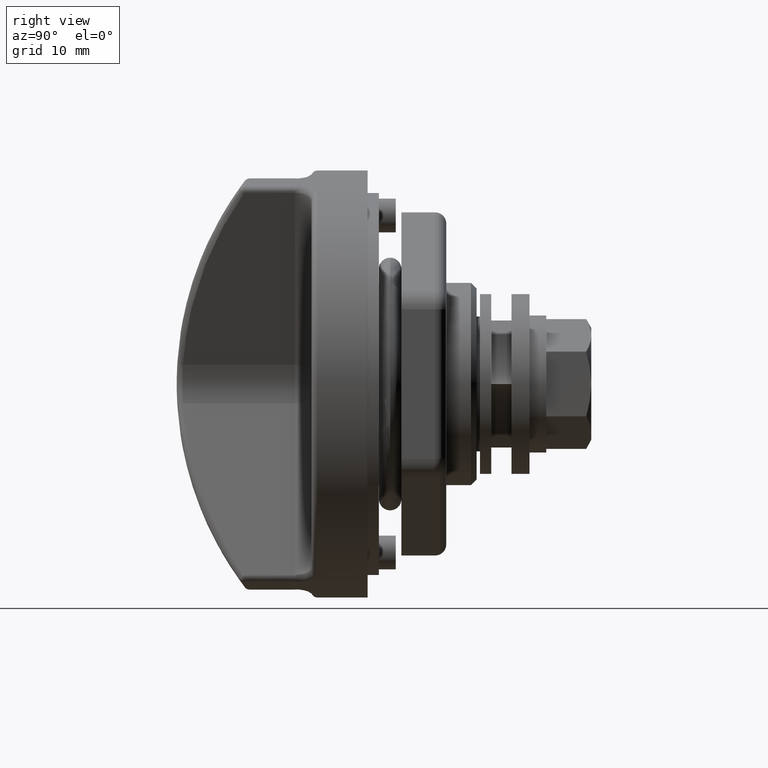
[diagram: clean part render]
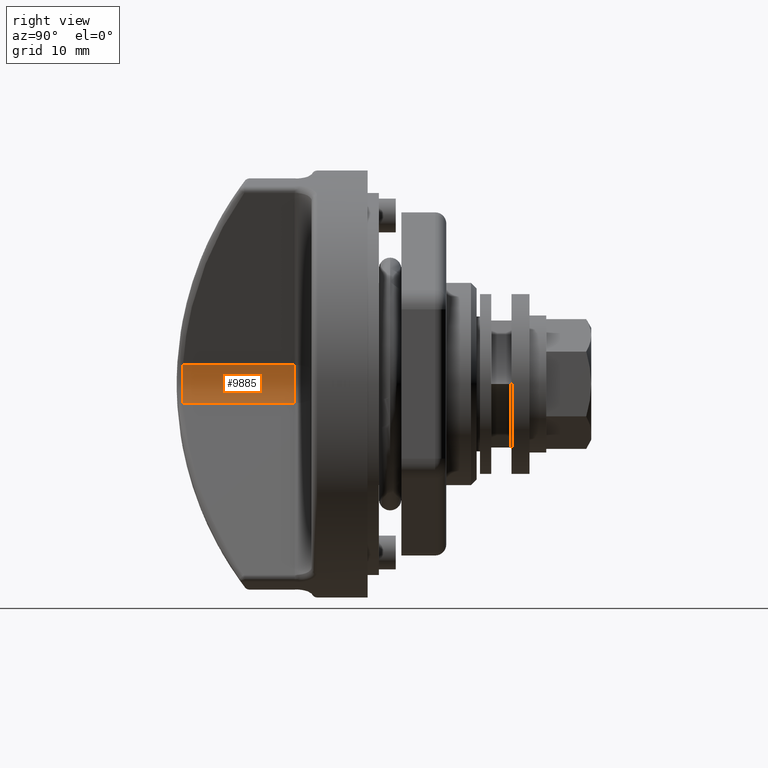
[diagram: same view with one face highlighted and labeled with its STEP entity id]
A machine part, right view. The second image highlights one B-rep face of the part: STEP entity #9885.
In plain terms, the highlighted cylindrical surface (partial cylindrical patch) has radius 4.9997 mm, axis along (0, -1, 0).
Its self-contained STEP definition (entity closure, byte-faithful):
#7505 = LINE ( 'NONE', #7513, #7773 ) ;
#7513 = CARTESIAN_POINT ( 'NONE',  ( 980.3188798485390400, -1.801000000000000200, -1.710100000000000000 ) ) ;
#7773 = VECTOR ( 'NONE', #7779, 1000.000000000000000 ) ;
#7779 = DIRECTION ( 'NONE',  ( -1.000000000000000000, 0.0000000000000000000, 0.0000000000000000000 ) ) ;
#8246 = CARTESIAN_POINT ( 'NONE',  ( 980.3188798485390400, -6.499103267433519600, -2.986390218861890200E-015 ) ) ;
#8247 = LINE ( 'NONE', #8310, #8309 ) ;
#8248 = FACE_OUTER_BOUND ( 'NONE', #9886, .T. ) ;
#8292 = DIRECTION ( 'NONE',  ( 0.0000000000000000000, 0.0000000000000000000, -1.000000000000000000 ) ) ;
#8293 = DIRECTION ( 'NONE',  ( 1.000000000000000000, 0.0000000000000000000, 0.0000000000000000000 ) ) ;
#8294 = AXIS2_PLACEMENT_3D ( 'NONE', #8304, #8293, #8292 ) ;
#8295 = CIRCLE ( 'NONE', #8294, 4.999661620696880200 ) ;
#8296 = CARTESIAN_POINT ( 'NONE',  ( -16.43996232374810200, -1.801000000000000200, -1.710100000000000000 ) ) ;
#8297 = CARTESIAN_POINT ( 'NONE',  ( -16.47874123563246600, -1.600174158435825300, -1.158377561290136800 ) ) ;
#8298 = CARTESIAN_POINT ( 'NONE',  ( -16.49993781658833600, -1.499744871936375300, -0.5892281926629223700 ) ) ;
#8299 = CARTESIAN_POINT ( 'NONE',  ( -16.50003088716631800, -1.499291031533510400, 0.2907462884728336200 ) ) ;
#8300 = CARTESIAN_POINT ( 'NONE',  ( -16.49471312503348100, -1.525040533111218200, 0.5825325574644466500 ) ) ;
#8301 = CARTESIAN_POINT ( 'NONE',  ( -16.47437479918967200, -1.625692923842482000, 1.153479903795378200 ) ) ;
#8302 = CARTESIAN_POINT ( 'NONE',  ( -16.45935232582717200, -1.700584250946902700, 1.434231009927536800 ) ) ;
#8303 = CARTESIAN_POINT ( 'NONE',  ( -16.43996232401690300, -1.801000000027980000, 1.710100000076820100 ) ) ;
#8304 = CARTESIAN_POINT ( 'NONE',  ( -6.500000000000000000, -6.499103267433519600, -2.986390218861890200E-015 ) ) ;
#8305 = B_SPLINE_CURVE_WITH_KNOTS ( 'NONE', 3,
 ( #8303, #8302, #8301, #8300, #8299, #8298, #8297, #8296 ),
 .UNSPECIFIED., .F., .F.,
 ( 4, 2, 2, 4 ),
 ( 0.0000000000000000000, 0.0008701309063310726800, 0.001740261812662144900, 0.003480523625324289900 ),
 .UNSPECIFIED. ) ;
#8306 = CARTESIAN_POINT ( 'NONE',  ( -16.43996232401690300, -1.801000000027980000, 1.710100000076820100 ) ) ;
#8307 = CARTESIAN_POINT ( 'NONE',  ( -6.500000000000000000, -1.801000000027980000, 1.710100000076820100 ) ) ;
#8308 = DIRECTION ( 'NONE',  ( -1.000000000000000000, 0.0000000000000000000, 0.0000000000000000000 ) ) ;
#8309 = VECTOR ( 'NONE', #8308, 1000.000000000000000 ) ;
#8310 = CARTESIAN_POINT ( 'NONE',  ( 980.3188798485390400, -1.801000000027980000, 1.710100000076820100 ) ) ;
#8311 = DIRECTION ( 'NONE',  ( 0.0000000000000000000, 0.0000000000000000000, 1.000000000000000000 ) ) ;
#8312 = DIRECTION ( 'NONE',  ( -1.000000000000000000, 0.0000000000000000000, 0.0000000000000000000 ) ) ;
#8313 = AXIS2_PLACEMENT_3D ( 'NONE', #8246, #8312, #8311 ) ;
#8314 = CYLINDRICAL_SURFACE ( 'NONE', #8313, 4.999661620696880200 ) ;
#8333 = CARTESIAN_POINT ( 'NONE',  ( -16.43996232374810200, -1.801000000000000200, -1.710100000000000000 ) ) ;
#8334 = CARTESIAN_POINT ( 'NONE',  ( -6.500000000000000000, -1.801000000000000200, -1.710100000000000000 ) ) ;
#9885 = ADVANCED_FACE ( 'NONE', ( #8248 ), #8314, .F. ) ;
#9886 = EDGE_LOOP ( 'NONE', ( #9887, #9891, #9893, #9894 ) ) ;
#9887 = ORIENTED_EDGE ( 'NONE', *, *, #9888, .T. ) ;
#9888 = EDGE_CURVE ( 'NONE', #9889, #9890, #8247, .T. ) ;
#9889 = VERTEX_POINT ( 'NONE', #8307 ) ;
#9890 = VERTEX_POINT ( 'NONE', #8306 ) ;
#9891 = ORIENTED_EDGE ( 'NONE', *, *, #9892, .T. ) ;
#9892 = EDGE_CURVE ( 'NONE', #9890, #9904, #8305, .T. ) ;
#9893 = ORIENTED_EDGE ( 'NONE', *, *, #9902, .F. ) ;
#9894 = ORIENTED_EDGE ( 'NONE', *, *, #9895, .T. ) ;
#9895 = EDGE_CURVE ( 'NONE', #9903, #9889, #8295, .T. ) ;
#9902 = EDGE_CURVE ( 'NONE', #9903, #9904, #7505, .T. ) ;
#9903 = VERTEX_POINT ( 'NONE', #8334 ) ;
#9904 = VERTEX_POINT ( 'NONE', #8333 ) ;